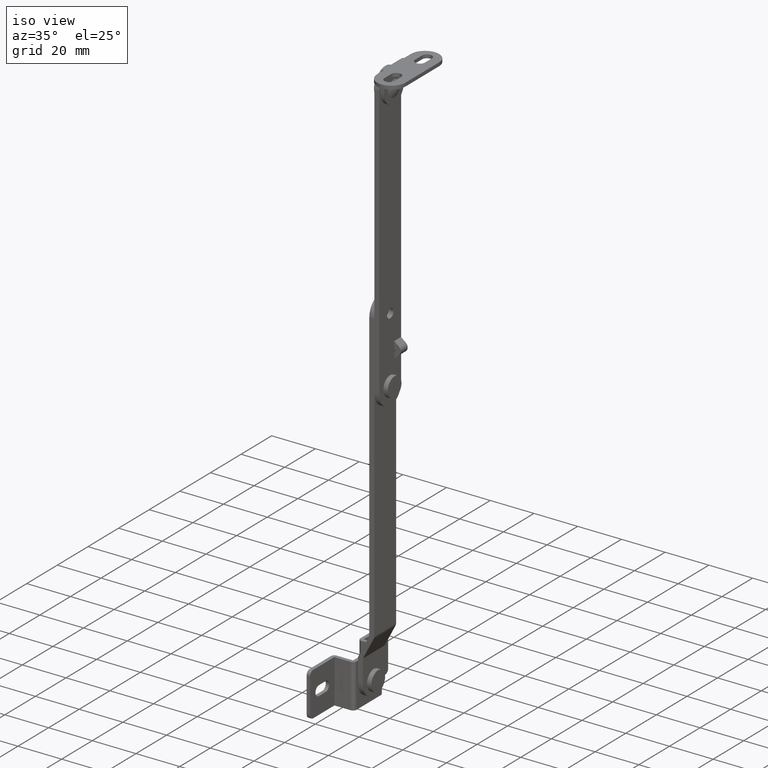
[diagram: clean part render]
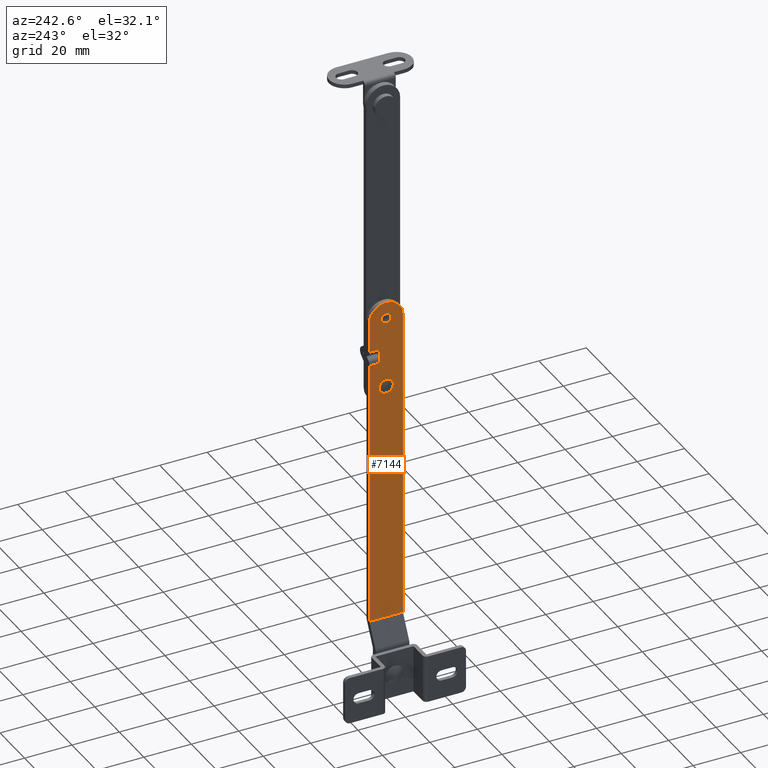
[diagram: tour spotlight — one face highlighted and labeled with its STEP entity id]
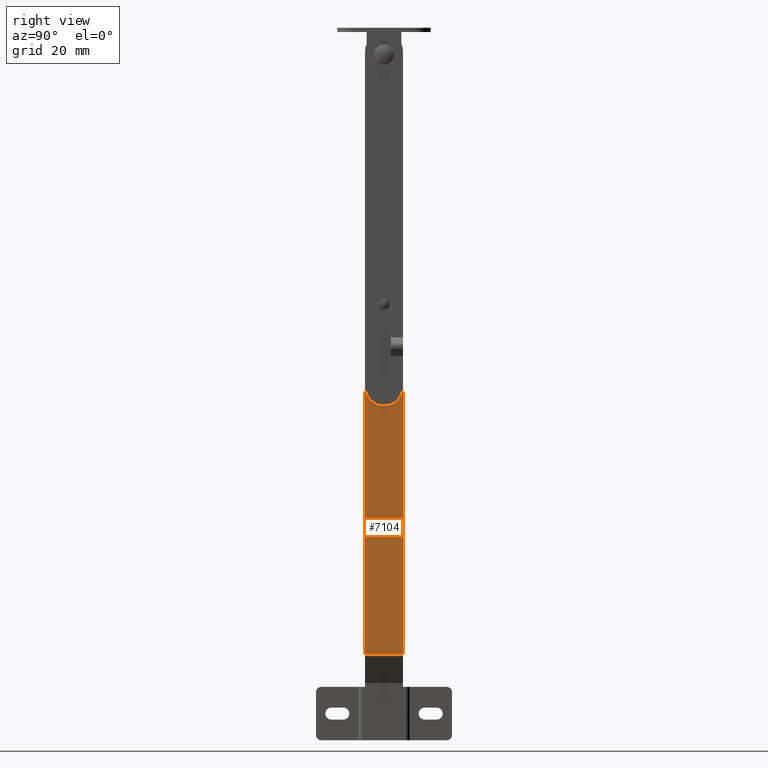
[diagram: tour spotlight — one face highlighted and labeled with its STEP entity id]
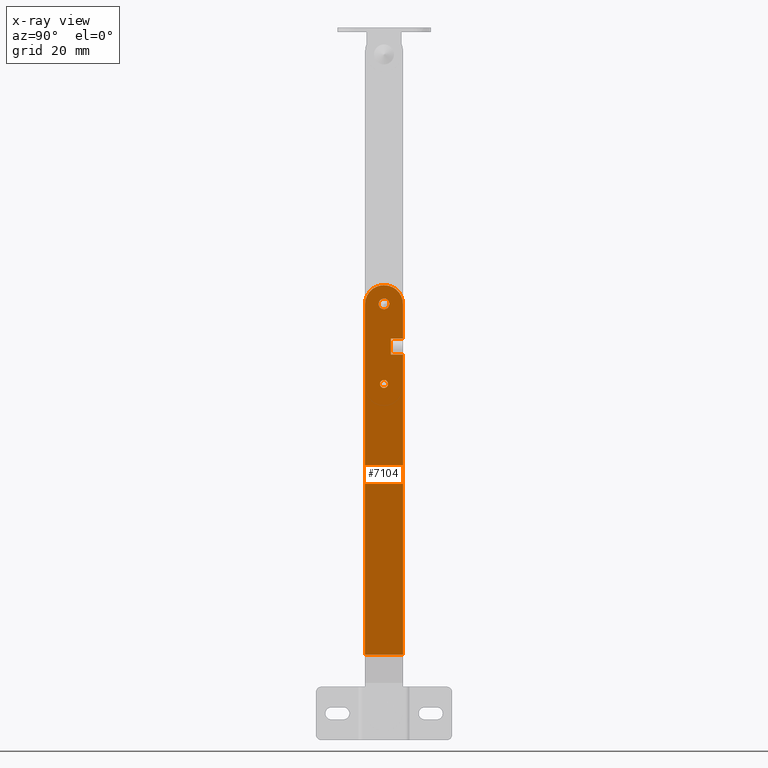
[diagram: x-ray of the same camera — body ghosted, this tour face saturated]
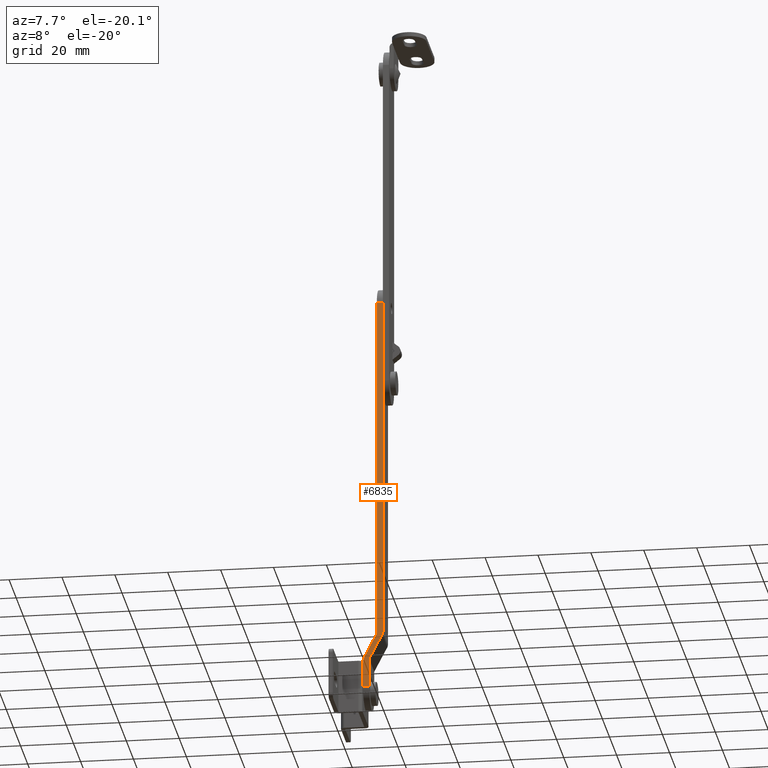
[diagram: tour spotlight — one face highlighted and labeled with its STEP entity id]
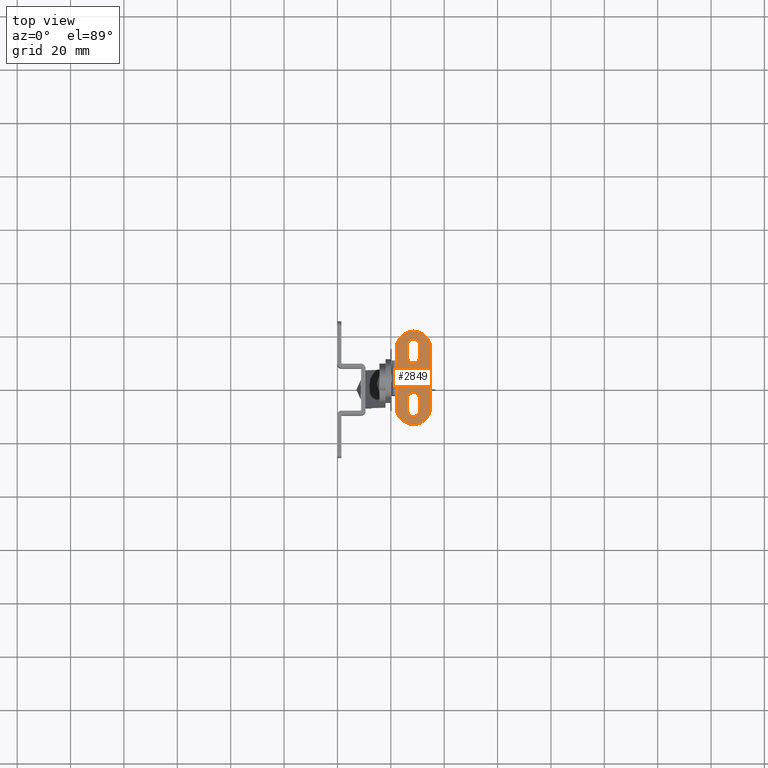
[diagram: tour spotlight — one face highlighted and labeled with its STEP entity id]
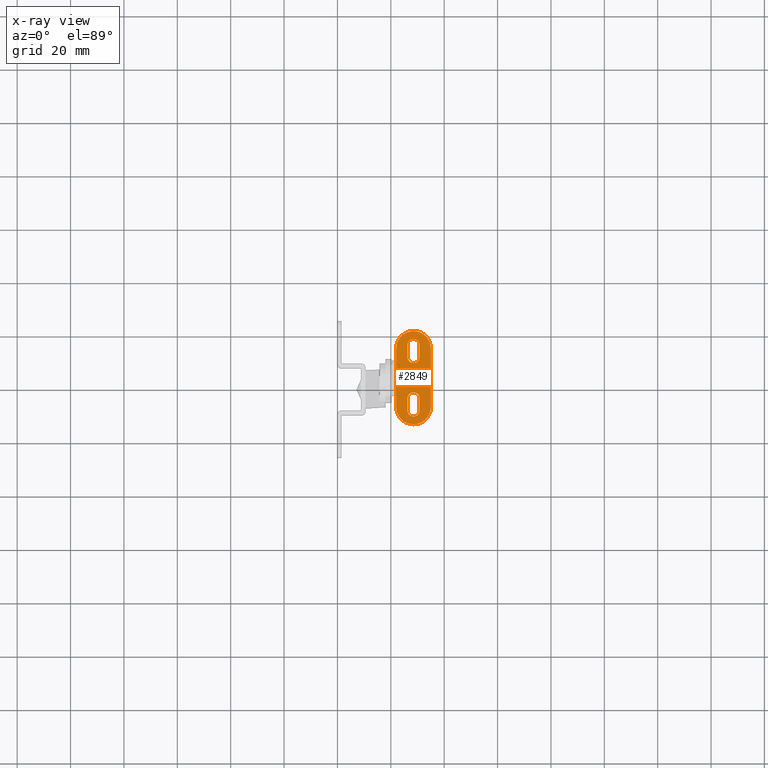
[diagram: x-ray of the same camera — body ghosted, this tour face saturated]
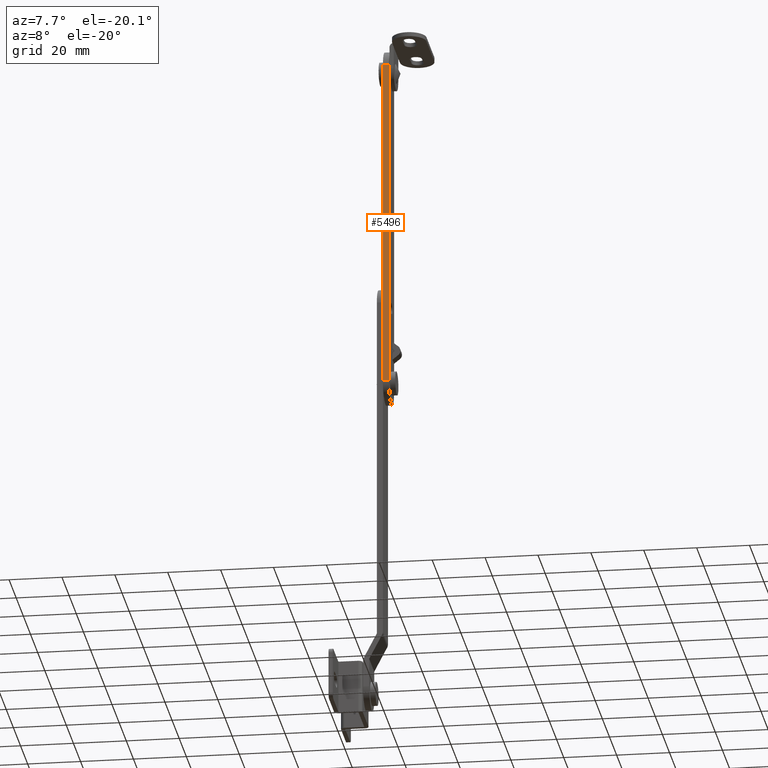
[diagram: tour spotlight — one face highlighted and labeled with its STEP entity id]
A machine part: a face-by-face anatomy tour. The part has 133 B-rep faces; the first image is the clean iso view, then the 5 largest visible faces are spotlighted one at a time (largest first), each with its STEP entity span.

Face 1 — auxiliary view, entity #7144. In plain terms, the highlighted face is a freeform B-spline surface patch.
Definition (entity closure, byte-faithful):
#5938=CARTESIAN_POINT('',(15.700005999999901,1.051364375599573,1.069875167157944));
#5939=VERTEX_POINT('',#5938);
#5945=CARTESIAN_POINT('',(15.700005999999901,1.499999999999997,-0.000000101906711));
#5946=VERTEX_POINT('',#5945);
#5947=CARTESIAN_POINT('',(15.700005999999901,1.499999999999997,-0.000000101906711));
#5948=CARTESIAN_POINT('',(15.700005999999901,1.500122899739872,0.173719303648286));
#5949=CARTESIAN_POINT('',(15.700005999999890,1.430227417031528,0.570715885011454));
#5950=CARTESIAN_POINT('',(15.700005999999910,1.210980101920558,0.913539107441710));
#5951=CARTESIAN_POINT('',(15.700005999999901,1.051364375599573,1.069875167157944));
#5952=B_SPLINE_CURVE_WITH_KNOTS('',3,(#5947,#5948,#5949,#5950,#5951),.UNSPECIFIED.,.F.,.U.,(4,1,4),(0.000000135435634,0.521198244420726,1.191308747500656),.UNSPECIFIED.);
#5953=EDGE_CURVE('',#5946,#5939,#5952,.T.);
#5955=CARTESIAN_POINT('',(15.700005999999901,0.0,-1.500000000000000));
#5956=VERTEX_POINT('',#5955);
#5957=CARTESIAN_POINT('',(15.700005999999901,0.0,-1.500000000000000));
#5958=CARTESIAN_POINT('',(15.700005999999910,0.196376599774125,-1.500198846235984));
#5959=CARTESIAN_POINT('',(15.700005999999901,0.588929838982074,-1.421784685667964));
#5960=CARTESIAN_POINT('',(15.700005999999920,1.088374425241262,-1.088400810398981));
#5961=CARTESIAN_POINT('',(15.700005999999890,1.421793857081724,-0.588893250957353));
#5962=CARTESIAN_POINT('',(15.700005999999910,1.500198181474121,-0.196384353455439));
#5963=CARTESIAN_POINT('',(15.700005999999901,1.499999999999997,-0.000000101906711));
#5964=B_SPLINE_CURVE_WITH_KNOTS('',3,(#5957,#5958,#5959,#5960,#5961,#5962,#5963),.UNSPECIFIED.,.F.,.U.,(4,1,1,1,4),(0.000000459807827,0.589113369118813,1.178215900984567,1.767323334941643,2.356430767539226),.UNSPECIFIED.);
#5965=EDGE_CURVE('',#5956,#5946,#5964,.T.);
#5967=CARTESIAN_POINT('',(15.700005999999901,-1.499999999999996,0.000000101906706));
#5968=VERTEX_POINT('',#5967);
#5969=CARTESIAN_POINT('',(15.700005999999901,-1.499999999999996,0.000000101906706));
#5970=CARTESIAN_POINT('',(15.700005999999910,-1.500225076701669,-0.196392123287928));
#5971=CARTESIAN_POINT('',(15.700005999999901,-1.441289951424104,-0.490736169374429));
#5972=CARTESIAN_POINT('',(15.700005999999910,-1.232001842553225,-0.882227498810049));
#5973=CARTESIAN_POINT('',(15.700005999999901,-0.932211260962410,-1.213320729072461));
#5974=CARTESIAN_POINT('',(15.700005999999870,-0.490912203928214,-1.449141017529791));
#5975=CARTESIAN_POINT('',(15.700005999999950,-0.147243551641718,-1.500023796581489));
#5976=CARTESIAN_POINT('',(15.700005999999901,0.0,-1.500000000000000));
#5977=B_SPLINE_CURVE_WITH_KNOTS('',3,(#5969,#5970,#5971,#5972,#5973,#5974,#5975,#5976),.UNSPECIFIED.,.F.,.U.,(4,1,1,1,1,4),(0.000000459268588,0.589113397398972,0.883685197253353,1.325465789790729,1.914625473615346,2.356430882423040),.UNSPECIFIED.);
#5978=EDGE_CURVE('',#5968,#5956,#5977,.T.);
#5980=CARTESIAN_POINT('',(15.700005999999901,-1.069875204058379,1.051364410734426));
#5981=VERTEX_POINT('',#5980);
#5982=CARTESIAN_POINT('',(15.700005999999901,-1.069875204058379,1.051364410734426));
#5983=CARTESIAN_POINT('',(15.700005999999920,-1.189042302744210,0.930248537843461));
#5984=CARTESIAN_POINT('',(15.700005999999879,-1.413534928086137,0.606487620280721));
#5985=CARTESIAN_POINT('',(15.700005999999901,-1.500344233021598,0.218503113093642));
#5986=CARTESIAN_POINT('',(15.700005999999901,-1.499999999999996,0.000000101906706));
#5987=B_SPLINE_CURVE_WITH_KNOTS('',3,(#5982,#5983,#5984,#5985,#5986),.UNSPECIFIED.,.F.,.U.,(4,1,4),(0.000000241074428,0.509760731907580,1.165122145957462),.UNSPECIFIED.);
#5988=EDGE_CURVE('',#5981,#5968,#5987,.T.);
#6023=CARTESIAN_POINT('',(15.700005999999901,0.0,1.500000000000000));
#6024=VERTEX_POINT('',#6023);
#6025=CARTESIAN_POINT('',(15.700005999999901,0.0,1.500000000000000));
#6026=CARTESIAN_POINT('',(15.700005999999890,-0.223428060207199,1.500376288470502));
#6027=CARTESIAN_POINT('',(15.700005999999959,-0.620080230317028,1.409508688843978));
#6028=CARTESIAN_POINT('',(15.700005999999870,-0.948203856341449,1.175368785320089));
#6029=CARTESIAN_POINT('',(15.700005999999901,-1.069875204058379,1.051364410734426));
#6030=B_SPLINE_CURVE_WITH_KNOTS('',3,(#6025,#6026,#6027,#6028,#6029),.UNSPECIFIED.,.F.,.U.,(4,1,4),(0.000000135444597,0.670110593011670,1.191308666597442),.UNSPECIFIED.);
#6031=EDGE_CURVE('',#6024,#5981,#6030,.T.);
#6033=CARTESIAN_POINT('',(15.700005999999901,1.051364375599573,1.069875167157944));
#6034=CARTESIAN_POINT('',(15.700005999999920,0.930251330822764,1.189035414014511));
#6035=CARTESIAN_POINT('',(15.700005999999890,0.606482672633110,1.413552001762013));
#6036=CARTESIAN_POINT('',(15.700005999999931,0.218501623237919,1.500330302461933));
#6037=CARTESIAN_POINT('',(15.700005999999901,0.0,1.500000000000000));
#6038=B_SPLINE_CURVE_WITH_KNOTS('',3,(#6033,#6034,#6035,#6036,#6037),.UNSPECIFIED.,.F.,.U.,(4,1,4),(0.000000241082925,0.509760768207852,1.165122228912353),.UNSPECIFIED.);
#6039=EDGE_CURVE('',#5939,#6024,#6038,.T.);
#6175=CARTESIAN_POINT('',(15.700005999999901,7.099999999999810,30.0));
#6176=VERTEX_POINT('',#6175);
#6182=CARTESIAN_POINT('',(15.700005999999901,0.099999999999771,37.0));
#6183=VERTEX_POINT('',#6182);
#6184=CARTESIAN_POINT('',(15.700005999999901,7.099999999999810,30.0));
#6185=CARTESIAN_POINT('',(15.700005999999890,7.100303883559221,30.687249683289629));
#6186=CARTESIAN_POINT('',(15.700005999999931,6.904436177481684,32.004259631704073));
#6187=CARTESIAN_POINT('',(15.700005999999870,6.158494406893565,33.633124725465173));
#6188=CARTESIAN_POINT('',(15.700005999999901,5.237776178589876,34.812507928734938));
#6189=CARTESIAN_POINT('',(15.700005999999901,4.161317936839008,35.764434829163832));
#6190=CARTESIAN_POINT('',(15.700005999999910,2.504664378143159,36.703281422626411));
#6191=CARTESIAN_POINT('',(15.700005999999920,1.016461110381277,37.000993557354640));
#6192=CARTESIAN_POINT('',(15.700005999999901,0.099999999999771,37.0));
#6193=B_SPLINE_CURVE_WITH_KNOTS('',3,(#6184,#6185,#6186,#6187,#6188,#6189,#6190,#6191,#6192),.UNSPECIFIED.,.F.,.U.,(4,1,1,1,1,1,4),(0.000000103436056,2.061694947789325,3.951660903987262,5.326116027955242,6.528757446212479,8.246887686309247,10.995850210342770),.UNSPECIFIED.);
#6194=EDGE_CURVE('',#6176,#6183,#6193,.T.);
#6234=CARTESIAN_POINT('',(15.700005999999901,-0.100000000000096,37.0));
#6235=VERTEX_POINT('',#6234);
#6241=CARTESIAN_POINT('',(15.700005999999901,-7.100000000000130,30.0));
#6242=VERTEX_POINT('',#6241);
#6243=CARTESIAN_POINT('',(15.700005999999901,-0.100000000000096,37.0));
#6244=CARTESIAN_POINT('',(15.700005999999920,-0.787243415503731,37.000265346069497));
#6245=CARTESIAN_POINT('',(15.700005999999879,-1.989699681110912,36.821431970349472));
#6246=CARTESIAN_POINT('',(15.700005999999931,-3.790451056378825,36.049712206875398));
#6247=CARTESIAN_POINT('',(15.700005999999879,-5.148950888100769,34.962647907980717));
#6248=CARTESIAN_POINT('',(15.700005999999910,-6.142752178214779,33.621869600809639));
#6249=CARTESIAN_POINT('',(15.700005999999910,-6.881009957173792,32.061333463537267));
#6250=CARTESIAN_POINT('',(15.700005999999901,-7.100627264238812,30.801850054614050));
#6251=CARTESIAN_POINT('',(15.700005999999901,-7.100000000000130,30.0));
#6252=B_SPLINE_CURVE_WITH_KNOTS('',3,(#6243,#6244,#6245,#6246,#6247,#6248,#6249,#6250,#6251),.UNSPECIFIED.,.F.,.U.,(4,1,1,1,1,1,4),(0.000000103441824,2.061694947793109,3.608039198012665,5.841537144288274,7.215993843949471,8.590522354220333,10.995850210342800),.UNSPECIFIED.);
#6253=EDGE_CURVE('',#6235,#6242,#6252,.T.);
#6375=CARTESIAN_POINT('',(15.699988000014550,2.599999999999935,11.220224619865300));
#6376=VERTEX_POINT('',#6375);
#6377=CARTESIAN_POINT('',(15.699996999999900,2.599999999999935,10.999999999972101));
#6378=VERTEX_POINT('',#6377);
#6379=CARTESIAN_POINT('',(15.699988000014550,2.599999999999935,11.220224619865300));
#6380=CARTESIAN_POINT('',(15.699996999999900,2.599999999999935,10.999999999972101));
#6381=QUASI_UNIFORM_CURVE('',1,(#6379,#6380),.UNSPECIFIED.,.F.,.U.);
#6382=EDGE_CURVE('',#6376,#6378,#6381,.T.);
#6391=CARTESIAN_POINT('',(15.699987999999900,7.099999999999770,10.999999999972101));
#6392=VERTEX_POINT('',#6391);
#6398=CARTESIAN_POINT('',(15.699987999999900,7.099999999999770,10.999999999972101));
#6399=CARTESIAN_POINT('',(15.699996999999900,2.599999999999935,10.999999999972101));
#6400=QUASI_UNIFORM_CURVE('',1,(#6398,#6399),.UNSPECIFIED.,.F.,.U.);
#6401=EDGE_CURVE('',#6392,#6378,#6400,.T.);
#6422=CARTESIAN_POINT('',(15.700005999999901,2.599999999999935,11.229324048898141));
#6423=VERTEX_POINT('',#6422);
#6450=CARTESIAN_POINT('',(15.699988000014550,2.599999999999935,11.220224619865300));
#6451=CARTESIAN_POINT('',(15.700005999999901,2.599999999999935,11.229324048898141));
#6452=QUASI_UNIFORM_CURVE('',1,(#6450,#6451),.UNSPECIFIED.,.F.,.U.);
#6453=EDGE_CURVE('',#6376,#6423,#6452,.T.);
#6528=CARTESIAN_POINT('',(15.700005999999901,2.599999999999940,16.770675949953350));
#6529=VERTEX_POINT('',#6528);
#6530=CARTESIAN_POINT('',(15.699987999999900,2.599999999999940,16.779775380078000));
#6531=VERTEX_POINT('',#6530);
#6532=CARTESIAN_POINT('',(15.700005999999901,2.599999999999940,16.770675949953350));
#6533=CARTESIAN_POINT('',(15.699987999999900,2.599999999999940,16.779775380078000));
#6534=QUASI_UNIFORM_CURVE('',1,(#6532,#6533),.UNSPECIFIED.,.F.,.U.);
#6535=EDGE_CURVE('',#6529,#6531,#6534,.T.);
#6570=CARTESIAN_POINT('',(15.699996999999900,2.599999999999940,16.999999999971699));
#6571=VERTEX_POINT('',#6570);
#6572=CARTESIAN_POINT('',(15.699996999999900,2.599999999999940,16.999999999971699));
#6573=CARTESIAN_POINT('',(15.699987999999900,2.599999999999940,16.779775380078000));
#6574=QUASI_UNIFORM_CURVE('',1,(#6572,#6573),.UNSPECIFIED.,.F.,.U.);
#6575=EDGE_CURVE('',#6571,#6531,#6574,.T.);
#6577=CARTESIAN_POINT('',(15.699987999999900,7.099999999999779,16.999999999971699));
#6578=VERTEX_POINT('',#6577);
#6579=CARTESIAN_POINT('',(15.699996999999900,2.599999999999940,16.999999999971699));
#6580=CARTESIAN_POINT('',(15.699987999999900,7.099999999999779,16.999999999971699));
#6581=QUASI_UNIFORM_CURVE('',1,(#6579,#6580),.UNSPECIFIED.,.F.,.U.);
#6582=EDGE_CURVE('',#6571,#6578,#6581,.T.);
#6639=CARTESIAN_POINT('',(15.700005999999901,-1.104993E-013,31.999986499873440));
#6640=VERTEX_POINT('',#6639);
#6641=CARTESIAN_POINT('',(15.700005999999901,1.999986499859042,29.999992440103970));
#6642=VERTEX_POINT('',#6641);
#6643=CARTESIAN_POINT('',(15.700005999999901,-1.104993E-013,31.999986499873440));
#6644=CARTESIAN_POINT('',(15.700005999999901,0.311004049127547,32.000554016563207));
#6645=CARTESIAN_POINT('',(15.700005999999890,0.817693490684918,31.879194944000609));
#6646=CARTESIAN_POINT('',(15.700005999999920,1.399144428384320,31.469555071839640));
#6647=CARTESIAN_POINT('',(15.700005999999931,1.857344538672020,30.882810705553741));
#6648=CARTESIAN_POINT('',(15.700005999999901,2.000757373706217,30.343797223003641));
#6649=CARTESIAN_POINT('',(15.700005999999901,1.999986499859042,29.999992440103970));
#6650=B_SPLINE_CURVE_WITH_KNOTS('',3,(#6643,#6644,#6645,#6646,#6647,#6648,#6649),.UNSPECIFIED.,.F.,.U.,(4,1,1,1,4),(0.000000627928302,0.932681936950446,1.521832675477801,2.110782849266091,3.141654543332307),.UNSPECIFIED.);
#6651=EDGE_CURVE('',#6640,#6642,#6650,.T.);
#6653=CARTESIAN_POINT('',(15.700005999999901,-1.104993E-013,28.000013500126560));
#6654=VERTEX_POINT('',#6653);
#6655=CARTESIAN_POINT('',(15.700005999999901,1.999986499859042,29.999992440103970));
#6656=CARTESIAN_POINT('',(15.700005999999890,2.000513208145683,29.689025904341719));
#6657=CARTESIAN_POINT('',(15.700005999999940,1.871502387616775,29.149572989678159));
#6658=CARTESIAN_POINT('',(15.700005999999879,1.426249773000000,28.549477397777249));
#6659=CARTESIAN_POINT('',(15.700005999999901,0.817703691052499,28.120772215589842));
#6660=CARTESIAN_POINT('',(15.700005999999931,0.310998881330935,27.999471182854741));
#6661=CARTESIAN_POINT('',(15.700005999999901,-1.104993E-013,28.000013500126560));
#6662=B_SPLINE_CURVE_WITH_KNOTS('',3,(#6655,#6656,#6657,#6658,#6659,#6660,#6661),.UNSPECIFIED.,.F.,.U.,(4,1,1,1,4),(0.000000638224991,0.932679417473202,1.619816557682315,2.208963251869816,3.141646021354817),.UNSPECIFIED.);
#6663=EDGE_CURVE('',#6642,#6654,#6662,.T.);
#6665=CARTESIAN_POINT('',(15.700005999999901,-1.999986499859263,30.000007559896019));
#6666=VERTEX_POINT('',#6665);
#6667=CARTESIAN_POINT('',(15.700005999999901,-1.104993E-013,28.000013500126560));
#6668=CARTESIAN_POINT('',(15.700005999999890,-0.360275609754534,27.998961343049832));
#6669=CARTESIAN_POINT('',(15.700005999999931,-0.850035489973806,28.136145614448839));
#6670=CARTESIAN_POINT('',(15.700005999999901,-1.417827204026142,28.557541991597880));
#6671=CARTESIAN_POINT('',(15.700005999999901,-1.852956323160285,29.100781792100850));
#6672=CARTESIAN_POINT('',(15.700005999999901,-2.000822813940395,29.656209374842419));
#6673=CARTESIAN_POINT('',(15.700005999999901,-1.999986499859263,30.000007559896019));
#6674=B_SPLINE_CURVE_WITH_KNOTS('',3,(#6667,#6668,#6669,#6670,#6671,#6672,#6673),.UNSPECIFIED.,.F.,.U.,(4,1,1,1,4),(0.000000627928806,1.079982158424290,1.472680493894485,2.110782849266362,3.141654543332297),.UNSPECIFIED.);
#6675=EDGE_CURVE('',#6654,#6666,#6674,.T.);
#6677=CARTESIAN_POINT('',(15.700005999999901,-1.999986499859263,30.000007559896019));
#6678=CARTESIAN_POINT('',(15.700005999999901,-2.000555881411592,30.311024373463390));
#6679=CARTESIAN_POINT('',(15.700005999999940,-1.890929681635134,30.768610507004780));
#6680=CARTESIAN_POINT('',(15.700005999999840,-1.531714833233878,31.320581321647548));
#6681=CARTESIAN_POINT('',(15.700005999999931,-1.188590946024654,31.631573656429978));
#6682=CARTESIAN_POINT('',(15.700005999999931,-0.670614727185511,31.916681122127191));
#6683=CARTESIAN_POINT('',(15.700005999999860,-0.278245211351140,32.000370125730072));
#6684=CARTESIAN_POINT('',(15.700005999999901,-1.104993E-013,31.999986499873440));
#6685=B_SPLINE_CURVE_WITH_KNOTS('',3,(#6677,#6678,#6679,#6680,#6681,#6682,#6683,#6684),.UNSPECIFIED.,.F.,.U.,(4,1,1,1,1,4),(0.000000638225369,0.932679417473527,1.374514959334685,1.963486114886091,2.307145353052646,3.141646021354821),.UNSPECIFIED.);
#6686=EDGE_CURVE('',#6666,#6640,#6685,.T.);
#6804=CARTESIAN_POINT('',(15.700005999999901,-7.100000000000120,-102.000000000032400));
#6805=VERTEX_POINT('',#6804);
#6806=CARTESIAN_POINT('',(15.700005999999901,-7.100000000000130,30.0));
#6807=CARTESIAN_POINT('',(15.700005999999901,-7.100000000000120,-102.000000000032400));
#6808=QUASI_UNIFORM_CURVE('',1,(#6806,#6807),.UNSPECIFIED.,.F.,.U.);
#6809=EDGE_CURVE('',#6242,#6805,#6808,.T.);
#6847=CARTESIAN_POINT('',(15.700005999999901,-0.100000000000096,37.0));
#6848=CARTESIAN_POINT('',(15.700005999999901,0.099999999999771,37.0));
#6849=QUASI_UNIFORM_CURVE('',1,(#6847,#6848),.UNSPECIFIED.,.F.,.U.);
#6850=EDGE_CURVE('',#6235,#6183,#6849,.T.);
#7011=CARTESIAN_POINT('',(15.700005999999901,7.099999999999759,-102.000000000032400));
#7012=VERTEX_POINT('',#7011);
#7020=CARTESIAN_POINT('',(15.700005999999901,-7.100000000000120,-102.000000000032400));
#7021=CARTESIAN_POINT('',(15.700005999999901,7.099999999999759,-102.000000000032400));
#7022=QUASI_UNIFORM_CURVE('',1,(#7020,#7021),.UNSPECIFIED.,.F.,.U.);
#7023=EDGE_CURVE('',#6805,#7012,#7022,.T.);
#7036=CARTESIAN_POINT('',(15.699987999999900,7.099999999999770,10.999999999972101));
#7037=CARTESIAN_POINT('',(15.700005999999901,7.099999999999759,-102.000000000032400));
#7038=QUASI_UNIFORM_CURVE('',1,(#7036,#7037),.UNSPECIFIED.,.F.,.U.);
#7039=EDGE_CURVE('',#6392,#7012,#7038,.T.);
#7047=CARTESIAN_POINT('',(15.700005999999901,7.099999999999810,30.0));
#7048=CARTESIAN_POINT('',(15.699987999999900,7.099999999999779,16.999999999971699));
#7049=QUASI_UNIFORM_CURVE('',1,(#7047,#7048),.UNSPECIFIED.,.F.,.U.);
#7050=EDGE_CURVE('',#6176,#6578,#7049,.T.);
#7105=CARTESIAN_POINT('',(15.700005999999901,-7.809289972477773,-108.943049730625110));
#7106=CARTESIAN_POINT('',(15.700005999999901,-7.809289972477773,43.943053458863183));
#7107=CARTESIAN_POINT('',(15.700005999999901,7.809290353351130,-108.943049730625110));
#7108=CARTESIAN_POINT('',(15.700005999999901,7.809290353351130,43.943053458863183));
#7109=B_SPLINE_SURFACE_WITH_KNOTS('',1,1,((#7105,#7107),(#7106,#7108)),.UNSPECIFIED.,.F.,.F.,.U.,(2,2),(2,2),(0.0,152.886103189488300),(0.0,15.618580325828900),.UNSPECIFIED.);
#7110=ORIENTED_EDGE('',*,*,#6850,.T.);
#7111=ORIENTED_EDGE('',*,*,#6194,.F.);
#7112=ORIENTED_EDGE('',*,*,#7050,.T.);
#7113=ORIENTED_EDGE('',*,*,#6582,.F.);
#7114=ORIENTED_EDGE('',*,*,#6575,.T.);
#7115=ORIENTED_EDGE('',*,*,#6535,.F.);
#7116=CARTESIAN_POINT('',(15.700005999999901,2.599999999999935,11.229324048898141));
#7117=CARTESIAN_POINT('',(15.700005999999901,2.599999999999940,16.770675949953350));
#7118=QUASI_UNIFORM_CURVE('',1,(#7116,#7117),.UNSPECIFIED.,.F.,.U.);
#7119=EDGE_CURVE('',#6423,#6529,#7118,.T.);
#7120=ORIENTED_EDGE('',*,*,#7119,.F.);
#7121=ORIENTED_EDGE('',*,*,#6453,.F.);
#7122=ORIENTED_EDGE('',*,*,#6382,.T.);
#7123=ORIENTED_EDGE('',*,*,#6401,.F.);
#7124=ORIENTED_EDGE('',*,*,#7039,.T.);
#7125=ORIENTED_EDGE('',*,*,#7023,.F.);
#7126=ORIENTED_EDGE('',*,*,#6809,.F.);
#7127=ORIENTED_EDGE('',*,*,#6253,.F.);
#7128=EDGE_LOOP('',(#7110,#7111,#7112,#7113,#7114,#7115,#7120,#7121,#7122,#7123,#7124,#7125,#7126,#7127));
#7129=FACE_OUTER_BOUND('',#7128,.T.);
#7130=ORIENTED_EDGE('',*,*,#5978,.T.);
#7131=ORIENTED_EDGE('',*,*,#5965,.T.);
#7132=ORIENTED_EDGE('',*,*,#5953,.T.);
#7133=ORIENTED_EDGE('',*,*,#6039,.T.);
#7134=ORIENTED_EDGE('',*,*,#6031,.T.);
#7135=ORIENTED_EDGE('',*,*,#5988,.T.);
#7136=EDGE_LOOP('',(#7130,#7131,#7132,#7133,#7134,#7135));
#7137=FACE_BOUND('',#7136,.T.);
#7138=ORIENTED_EDGE('',*,*,#6651,.F.);
#7139=ORIENTED_EDGE('',*,*,#6686,.F.);
#7140=ORIENTED_EDGE('',*,*,#6675,.F.);
#7141=ORIENTED_EDGE('',*,*,#6663,.F.);
#7142=EDGE_LOOP('',(#7138,#7139,#7140,#7141));
#7143=FACE_BOUND('',#7142,.T.);
#7144=ADVANCED_FACE('',(#7129,#7137,#7143),#7109,.T.);

Face 2 — right view, entity #7104. An x-ray twin of the same camera follows (body ghosted, this face saturated) — the face is partly hidden behind the body. In plain terms, the highlighted face is a freeform B-spline surface patch.
Definition (entity closure, byte-faithful):
#5891=CARTESIAN_POINT('',(18.000005999999850,-1.499999999999997,-0.000000101906711));
#5892=VERTEX_POINT('',#5891);
#5893=CARTESIAN_POINT('',(18.000006000000660,-1.069875161060262,1.051364381804607));
#5894=VERTEX_POINT('',#5893);
#5895=CARTESIAN_POINT('',(18.000005999999850,-1.499999999999997,-0.000000101906711));
#5896=CARTESIAN_POINT('',(18.000006000000010,-1.500103130820053,0.169910022762481));
#5897=CARTESIAN_POINT('',(18.000006000000241,-1.433303266753001,0.558185943725692));
#5898=CARTESIAN_POINT('',(18.000006000000560,-1.223265452978632,0.895753491769580));
#5899=CARTESIAN_POINT('',(18.000006000000660,-1.069875161060262,1.051364381804607));
#5900=B_SPLINE_CURVE_WITH_KNOTS('',3,(#5895,#5896,#5897,#5898,#5899),.UNSPECIFIED.,.F.,.U.,(4,1,4),(0.000000241074635,0.509760816615268,1.165122339551251),.UNSPECIFIED.);
#5901=EDGE_CURVE('',#5892,#5894,#5900,.T.);
#5903=CARTESIAN_POINT('',(18.000005999999850,0.0,-1.500000000000000));
#5904=VERTEX_POINT('',#5903);
#5905=CARTESIAN_POINT('',(18.000005999999850,0.0,-1.500000000000000));
#5906=CARTESIAN_POINT('',(18.000005999999861,-0.196376588844617,-1.500198869482367));
#5907=CARTESIAN_POINT('',(18.000005999999861,-0.588929825499899,-1.421784717390424));
#5908=CARTESIAN_POINT('',(18.000005999999850,-1.088374743961445,-1.088400118192788));
#5909=CARTESIAN_POINT('',(18.000005999999850,-1.421792717255046,-0.588895725307404));
#5910=CARTESIAN_POINT('',(18.000005999999861,-1.500198714386067,-0.196383197151813));
#5911=CARTESIAN_POINT('',(18.000005999999850,-1.499999999999997,-0.000000101906711));
#5912=B_SPLINE_CURVE_WITH_KNOTS('',3,(#5905,#5906,#5907,#5908,#5909,#5910,#5911),.UNSPECIFIED.,.F.,.U.,(4,1,1,1,4),(0.000000459807827,0.589113369118813,1.178215900984567,1.767323334941643,2.356430767539226),.UNSPECIFIED.);
#5913=EDGE_CURVE('',#5904,#5892,#5912,.T.);
#5915=CARTESIAN_POINT('',(18.000005999999850,1.499999999999996,0.000000101906706));
#5916=VERTEX_POINT('',#5915);
#5917=CARTESIAN_POINT('',(18.000005999999850,1.499999999999996,0.000000101906706));
#5918=CARTESIAN_POINT('',(18.000005999999861,1.500227444283490,-0.196394948544765));
#5919=CARTESIAN_POINT('',(18.000005999999850,1.441280870387536,-0.490726147554906));
#5920=CARTESIAN_POINT('',(18.000005999999861,1.232015401121952,-0.882242641139707));
#5921=CARTESIAN_POINT('',(18.000005999999861,0.932195025719677,-1.213302192652900));
#5922=CARTESIAN_POINT('',(18.000005999999821,0.490922037095062,-1.449151624591697));
#5923=CARTESIAN_POINT('',(18.000005999999910,0.147241673740855,-1.500021779058160));
#5924=CARTESIAN_POINT('',(18.000005999999850,0.0,-1.500000000000000));
#5925=B_SPLINE_CURVE_WITH_KNOTS('',3,(#5917,#5918,#5919,#5920,#5921,#5922,#5923,#5924),.UNSPECIFIED.,.F.,.U.,(4,1,1,1,1,4),(0.000000459268588,0.589113397398972,0.883685197253353,1.325465789790729,1.914625473615346,2.356430882423040),.UNSPECIFIED.);
#5926=EDGE_CURVE('',#5916,#5904,#5925,.T.);
#5928=CARTESIAN_POINT('',(18.000005999997811,1.051364416937645,1.069875197962481));
#5929=VERTEX_POINT('',#5928);
#5930=CARTESIAN_POINT('',(18.000005999997811,1.051364416937645,1.069875197962481));
#5931=CARTESIAN_POINT('',(18.000005999998020,1.175367762360585,0.948206943918477));
#5932=CARTESIAN_POINT('',(18.000005999998709,1.409507436580304,0.620077975789718));
#5933=CARTESIAN_POINT('',(18.000005999999409,1.500376741575686,0.223430054945885));
#5934=CARTESIAN_POINT('',(18.000005999999850,1.499999999999996,0.000000101906706));
#5935=B_SPLINE_CURVE_WITH_KNOTS('',3,(#5930,#5931,#5932,#5933,#5934),.UNSPECIFIED.,.F.,.U.,(4,1,4),(0.000000135435517,0.521198160620940,1.191308555959615),.UNSPECIFIED.);
#5936=EDGE_CURVE('',#5929,#5916,#5935,.T.);
#6012=CARTESIAN_POINT('',(18.000005999999850,0.0,1.500000000000000));
#6013=VERTEX_POINT('',#6012);
#6014=CARTESIAN_POINT('',(18.000006000000660,-1.069875161060262,1.051364381804607));
#6015=CARTESIAN_POINT('',(18.000006000000582,-0.948192849623761,1.175362561215555));
#6016=CARTESIAN_POINT('',(18.000006000000301,-0.620093618435196,1.409519992278975));
#6017=CARTESIAN_POINT('',(18.000006000000049,-0.223423986242300,1.500370660498040));
#6018=CARTESIAN_POINT('',(18.000005999999850,0.0,1.500000000000000));
#6019=B_SPLINE_CURVE_WITH_KNOTS('',3,(#6014,#6015,#6016,#6017,#6018),.UNSPECIFIED.,.F.,.U.,(4,1,4),(0.000000135444576,0.521198196014019,1.191308636860280),.UNSPECIFIED.);
#6020=EDGE_CURVE('',#5894,#6013,#6019,.T.);
#6042=CARTESIAN_POINT('',(18.000005999999850,0.0,1.500000000000000));
#6043=CARTESIAN_POINT('',(18.000005999999431,0.218494379630198,1.500327565587853));
#6044=CARTESIAN_POINT('',(18.000005999998681,0.606510925274386,1.413560937305527));
#6045=CARTESIAN_POINT('',(18.000005999998049,0.930234915176164,1.189030498390524));
#6046=CARTESIAN_POINT('',(18.000005999997811,1.051364416937645,1.069875197962481));
#6047=B_SPLINE_CURVE_WITH_KNOTS('',3,(#6042,#6043,#6044,#6045,#6046),.UNSPECIFIED.,.F.,.U.,(4,1,4),(0.000000241082947,0.655361717355474,1.165122256593811),.UNSPECIFIED.);
#6048=EDGE_CURVE('',#6013,#5929,#6047,.T.);
#6159=CARTESIAN_POINT('',(18.000005999999900,0.099999999999771,37.0));
#6160=VERTEX_POINT('',#6159);
#6161=CARTESIAN_POINT('',(18.000005999999900,7.099999999999810,30.0));
#6162=VERTEX_POINT('',#6161);
#6163=CARTESIAN_POINT('',(18.000005999999900,0.099999999999771,37.0));
#6164=CARTESIAN_POINT('',(18.000005999999910,0.558129491409963,37.000049164539298));
#6165=CARTESIAN_POINT('',(18.000005999999889,1.531701648861112,36.904121370959452));
#6166=CARTESIAN_POINT('',(18.000005999999932,3.014766653559331,36.434364484796909));
#6167=CARTESIAN_POINT('',(18.000005999999900,4.598752977927457,35.485312077086952));
#6168=CARTESIAN_POINT('',(18.000005999999921,5.901396138992642,34.083040037347153));
#6169=CARTESIAN_POINT('',(18.000005999999878,6.861086483578201,32.175853780329739));
#6170=CARTESIAN_POINT('',(18.000005999999910,7.100608752265634,30.801839379138190));
#6171=CARTESIAN_POINT('',(18.000005999999900,7.099999999999810,30.0));
#6172=B_SPLINE_CURVE_WITH_KNOTS('',3,(#6163,#6164,#6165,#6166,#6167,#6168,#6169,#6170,#6171),.UNSPECIFIED.,.F.,.U.,(4,1,1,1,1,1,4),(0.000000103437594,1.374433178977116,2.920780861271868,4.638890327554297,6.872372686349995,8.590522354220244,10.995850210342770),.UNSPECIFIED.);
#6173=EDGE_CURVE('',#6160,#6162,#6172,.T.);
#6218=CARTESIAN_POINT('',(18.000005999999900,-7.100000000000130,30.0));
#6219=VERTEX_POINT('',#6218);
#6220=CARTESIAN_POINT('',(18.000005999999900,-0.100000000000096,37.0));
#6221=VERTEX_POINT('',#6220);
#6222=CARTESIAN_POINT('',(18.000005999999900,-7.100000000000130,30.0));
#6223=CARTESIAN_POINT('',(18.000005999999932,-7.100265206969085,30.687243634179062));
#6224=CARTESIAN_POINT('',(18.000005999999839,-6.921432701573106,31.889700397902850));
#6225=CARTESIAN_POINT('',(18.000005999999960,-6.149706173630148,33.690442842200028));
#6226=CARTESIAN_POINT('',(18.000005999999850,-5.062670607009047,35.048981568222104));
#6227=CARTESIAN_POINT('',(18.000005999999910,-3.814286363045309,35.974110814356528));
#6228=CARTESIAN_POINT('',(18.000005999999900,-2.275656229925599,36.749082999027593));
#6229=CARTESIAN_POINT('',(18.000005999999921,-1.016485849101378,37.000986558989410));
#6230=CARTESIAN_POINT('',(18.000005999999900,-0.100000000000096,37.0));
#6231=B_SPLINE_CURVE_WITH_KNOTS('',3,(#6222,#6223,#6224,#6225,#6226,#6227,#6228,#6229,#6230),.UNSPECIFIED.,.F.,.U.,(4,1,1,1,1,1,4),(0.000000103437234,2.061694947790036,3.608039198010765,5.841537144287647,7.215993843949216,8.246887686309258,10.995850210342800),.UNSPECIFIED.);
#6232=EDGE_CURVE('',#6219,#6221,#6231,.T.);
#6268=CARTESIAN_POINT('',(18.000000627530550,2.599999999999920,16.999990730335298));
#6269=VERTEX_POINT('',#6268);
#6270=CARTESIAN_POINT('',(18.000002195611749,2.599999999999915,11.000010420705159));
#6271=VERTEX_POINT('',#6270);
#6272=CARTESIAN_POINT('',(18.000000627530550,2.599999999999920,16.999990730335298));
#6273=CARTESIAN_POINT('',(18.000002195611749,2.599999999999915,11.000010420705159));
#6274=QUASI_UNIFORM_CURVE('',1,(#6272,#6273),.UNSPECIFIED.,.F.,.U.);
#6275=EDGE_CURVE('',#6269,#6271,#6274,.T.);
#6354=CARTESIAN_POINT('',(17.999997000007362,7.099999999999885,10.999999999972101));
#6355=VERTEX_POINT('',#6354);
#6356=CARTESIAN_POINT('',(18.000002195611749,2.599999999999915,11.000010420705159));
#6357=CARTESIAN_POINT('',(17.999997000007362,7.099999999999885,10.999999999972101));
#6358=QUASI_UNIFORM_CURVE('',1,(#6356,#6357),.UNSPECIFIED.,.F.,.U.);
#6359=EDGE_CURVE('',#6271,#6355,#6358,.T.);
#6600=CARTESIAN_POINT('',(17.999997000004878,7.099999999999795,16.999999999971699));
#6601=VERTEX_POINT('',#6600);
#6607=CARTESIAN_POINT('',(17.999997000004878,7.099999999999795,16.999999999971699));
#6608=CARTESIAN_POINT('',(18.000000627530550,2.599999999999920,16.999990730335298));
#6609=QUASI_UNIFORM_CURVE('',1,(#6607,#6608),.UNSPECIFIED.,.F.,.U.);
#6610=EDGE_CURVE('',#6601,#6269,#6609,.T.);
#6715=CARTESIAN_POINT('',(18.000005999999900,-1.104993E-013,31.999999999999719));
#6716=VERTEX_POINT('',#6715);
#6717=CARTESIAN_POINT('',(18.000005999999900,-1.999999999985538,29.999992440052939));
#6718=VERTEX_POINT('',#6717);
#6719=CARTESIAN_POINT('',(18.000005999999900,-1.104993E-013,31.999999999999719));
#6720=CARTESIAN_POINT('',(18.000005999999921,-0.163613419568087,32.000021993566953));
#6721=CARTESIAN_POINT('',(18.000005999999900,-0.556334424572660,31.951613046783439));
#6722=CARTESIAN_POINT('',(18.000005999999939,-1.163683284764232,31.682682604088651));
#6723=CARTESIAN_POINT('',(18.000005999999839,-1.623601722105755,31.222618518702681));
#6724=CARTESIAN_POINT('',(18.000005999999999,-1.926733003041354,30.637990518228701));
#6725=CARTESIAN_POINT('',(18.000005999999811,-2.000219181407495,30.245463807323929));
#6726=CARTESIAN_POINT('',(18.000005999999900,-1.999999999985538,29.999992440052939));
#6727=B_SPLINE_CURVE_WITH_KNOTS('',3,(#6719,#6720,#6721,#6722,#6723,#6724,#6725,#6726),.UNSPECIFIED.,.F.,.U.,(4,1,1,1,1,4),(0.000000627934735,0.490860546175845,1.178174674354041,1.963504714423057,2.405346803948755,3.141675749841974),.UNSPECIFIED.);
#6728=EDGE_CURVE('',#6716,#6718,#6727,.T.);
#6730=CARTESIAN_POINT('',(18.000005999999900,-1.104993E-013,28.000000000000281));
#6731=VERTEX_POINT('',#6730);
#6732=CARTESIAN_POINT('',(18.000005999999900,-1.999999999985538,29.999992440052939));
#6733=CARTESIAN_POINT('',(18.000005999999900,-2.000022615197152,29.836379592344748));
#6734=CARTESIAN_POINT('',(18.000005999999932,-1.951615075482396,29.443658966006790));
#6735=CARTESIAN_POINT('',(18.000005999999878,-1.682687942467849,28.836311885970709));
#6736=CARTESIAN_POINT('',(18.000005999999889,-1.222624521343937,28.376393076210420));
#6737=CARTESIAN_POINT('',(18.000005999999971,-0.637995941640505,28.073267157258979));
#6738=CARTESIAN_POINT('',(18.000005999999878,-0.245470815138002,27.999781275515151));
#6739=CARTESIAN_POINT('',(18.000005999999900,-1.104993E-013,28.000000000000281));
#6740=B_SPLINE_CURVE_WITH_KNOTS('',3,(#6732,#6733,#6734,#6735,#6736,#6737,#6738,#6739),.UNSPECIFIED.,.F.,.U.,(4,1,1,1,1,4),(0.000000638229603,0.490859221787257,1.178171486563162,1.963499368630637,2.405340284376993,3.141667227806961),.UNSPECIFIED.);
#6741=EDGE_CURVE('',#6718,#6731,#6740,.T.);
#6743=CARTESIAN_POINT('',(18.000005999999900,1.999999999985316,30.000007559947051));
#6744=VERTEX_POINT('',#6743);
#6745=CARTESIAN_POINT('',(18.000005999999900,-1.104993E-013,28.000000000000281));
#6746=CARTESIAN_POINT('',(18.000005999999932,0.310993223632369,27.999447021546320));
#6747=CARTESIAN_POINT('',(18.000005999999839,0.817738320728569,28.120750081616212));
#6748=CARTESIAN_POINT('',(18.000005999999999,1.358572563433599,28.501896577493039));
#6749=CARTESIAN_POINT('',(18.000005999999850,1.697750883268679,28.904984940712978));
#6750=CARTESIAN_POINT('',(18.000005999999949,1.936759768030051,29.394646559662199));
#6751=CARTESIAN_POINT('',(18.000005999999878,2.000106305458172,29.787283809459471));
#6752=CARTESIAN_POINT('',(18.000005999999900,1.999999999985316,30.000007559947051));
#6753=B_SPLINE_CURVE_WITH_KNOTS('',3,(#6745,#6746,#6747,#6748,#6749,#6750,#6751,#6752),.UNSPECIFIED.,.F.,.U.,(4,1,1,1,1,4),(0.000000627934103,0.932688232655805,1.521842948014293,1.963504714422843,2.503529834675230,3.141675749841967),.UNSPECIFIED.);
#6754=EDGE_CURVE('',#6731,#6744,#6753,.T.);
#6756=CARTESIAN_POINT('',(18.000005999999900,1.999999999985316,30.000007559947051));
#6757=CARTESIAN_POINT('',(18.000005999999921,2.000068287512364,30.196355623616022));
#6758=CARTESIAN_POINT('',(18.000005999999889,1.941729277969626,30.589033953036829));
#6759=CARTESIAN_POINT('',(18.000005999999910,1.708386513215219,31.082441182032529));
#6760=CARTESIAN_POINT('',(18.000005999999900,1.358560292337403,31.498102226164839));
#6761=CARTESIAN_POINT('',(18.000005999999939,0.817753036750880,31.879283339350220));
#6762=CARTESIAN_POINT('',(18.000005999999939,0.310986998639238,32.000528682376299));
#6763=CARTESIAN_POINT('',(18.000005999999900,-1.104993E-013,31.999999999999719));
#6764=B_SPLINE_CURVE_WITH_KNOTS('',3,(#6756,#6757,#6758,#6759,#6760,#6761,#6762,#6763),.UNSPECIFIED.,.F.,.U.,(4,1,1,1,1,4),(0.000000638226867,0.589042985088887,1.178171486561475,1.619827491618817,2.208978162610934,3.141667227807021),.UNSPECIFIED.);
#6765=EDGE_CURVE('',#6744,#6716,#6764,.T.);
#6789=CARTESIAN_POINT('',(18.000005999999900,-7.100000000000120,-101.437737469526000));
#6790=VERTEX_POINT('',#6789);
#6798=CARTESIAN_POINT('',(18.000005999999900,-7.100000000000120,-101.437737469526000));
#6799=CARTESIAN_POINT('',(18.000005999999900,-7.100000000000130,30.0));
#6800=QUASI_UNIFORM_CURVE('',1,(#6798,#6799),.UNSPECIFIED.,.F.,.U.);
#6801=EDGE_CURVE('',#6790,#6219,#6800,.T.);
#6841=CARTESIAN_POINT('',(18.000005999999900,-0.100000000000096,37.0));
#6842=CARTESIAN_POINT('',(18.000005999999900,0.099999999999771,37.0));
#6843=QUASI_UNIFORM_CURVE('',1,(#6841,#6842),.UNSPECIFIED.,.F.,.U.);
#6844=EDGE_CURVE('',#6221,#6160,#6843,.T.);
#6872=CARTESIAN_POINT('',(18.000005999999900,7.099999999999759,-101.437737469526000));
#6873=VERTEX_POINT('',#6872);
#6881=CARTESIAN_POINT('',(18.000005999999900,-7.100000000000120,-101.437737469526000));
#6882=CARTESIAN_POINT('',(18.000005999999900,7.099999999999759,-101.437737469526000));
#6883=QUASI_UNIFORM_CURVE('',1,(#6881,#6882),.UNSPECIFIED.,.F.,.U.);
#6884=EDGE_CURVE('',#6790,#6873,#6883,.T.);
#7053=CARTESIAN_POINT('',(17.999997000004878,7.099999999999795,16.999999999971699));
#7054=CARTESIAN_POINT('',(18.000005999999900,7.099999999999810,30.0));
#7055=QUASI_UNIFORM_CURVE('',1,(#7053,#7054),.UNSPECIFIED.,.F.,.U.);
#7056=EDGE_CURVE('',#6601,#6162,#7055,.T.);
#7061=CARTESIAN_POINT('',(18.000005999999900,7.099999999999759,-101.437737469526000));
#7062=CARTESIAN_POINT('',(17.999997000007362,7.099999999999885,10.999999999972101));
#7063=QUASI_UNIFORM_CURVE('',1,(#7061,#7062),.UNSPECIFIED.,.F.,.U.);
#7064=EDGE_CURVE('',#6873,#6355,#7063,.T.);
#7073=CARTESIAN_POINT('',(18.000005999999900,-7.809289972477776,43.914964718283628));
#7074=CARTESIAN_POINT('',(18.000005999999910,-7.809289972477776,-108.352705900999100));
#7075=CARTESIAN_POINT('',(18.000005999999910,7.809290353351210,43.914964718283628));
#7076=CARTESIAN_POINT('',(18.000005999999910,7.809290353351210,-108.352705900999100));
#7077=B_SPLINE_SURFACE_WITH_KNOTS('',1,1,((#7073,#7075),(#7074,#7076)),.UNSPECIFIED.,.F.,.F.,.U.,(2,2),(2,2),(0.0,152.267670619282710),(0.0,15.618580325828990),.UNSPECIFIED.);
#7078=ORIENTED_EDGE('',*,*,#6801,.F.);
#7079=ORIENTED_EDGE('',*,*,#6884,.T.);
#7080=ORIENTED_EDGE('',*,*,#7064,.T.);
#7081=ORIENTED_EDGE('',*,*,#6359,.F.);
#7082=ORIENTED_EDGE('',*,*,#6275,.F.);
#7083=ORIENTED_EDGE('',*,*,#6610,.F.);
#7084=ORIENTED_EDGE('',*,*,#7056,.T.);
#7085=ORIENTED_EDGE('',*,*,#6173,.F.);
#7086=ORIENTED_EDGE('',*,*,#6844,.F.);
#7087=ORIENTED_EDGE('',*,*,#6232,.F.);
#7088=EDGE_LOOP('',(#7078,#7079,#7080,#7081,#7082,#7083,#7084,#7085,#7086,#7087));
#7089=FACE_OUTER_BOUND('',#7088,.T.);
#7090=ORIENTED_EDGE('',*,*,#5926,.T.);
#7091=ORIENTED_EDGE('',*,*,#5913,.T.);
#7092=ORIENTED_EDGE('',*,*,#5901,.T.);
#7093=ORIENTED_EDGE('',*,*,#6020,.T.);
#7094=ORIENTED_EDGE('',*,*,#6048,.T.);
#7095=ORIENTED_EDGE('',*,*,#5936,.T.);
#7096=EDGE_LOOP('',(#7090,#7091,#7092,#7093,#7094,#7095));
#7097=FACE_BOUND('',#7096,.T.);
#7098=ORIENTED_EDGE('',*,*,#6728,.F.);
#7099=ORIENTED_EDGE('',*,*,#6765,.F.);
#7100=ORIENTED_EDGE('',*,*,#6754,.F.);
#7101=ORIENTED_EDGE('',*,*,#6741,.F.);
#7102=EDGE_LOOP('',(#7098,#7099,#7100,#7101));
#7103=FACE_BOUND('',#7102,.T.);
#7104=ADVANCED_FACE('',(#7089,#7097,#7103),#7077,.T.);

Face 3 — auxiliary view, entity #6835. In plain terms, the highlighted face is a freeform B-spline surface patch.
Definition (entity closure, byte-faithful):
#6088=CARTESIAN_POINT('',(12.800005999999900,-7.100000000000140,-122.900000000032410));
#6089=VERTEX_POINT('',#6088);
#6102=CARTESIAN_POINT('',(10.500005999999900,-7.100000000000140,-122.900000000032410));
#6103=VERTEX_POINT('',#6102);
#6104=CARTESIAN_POINT('',(12.800005999999900,-7.100000000000140,-122.900000000032410));
#6105=CARTESIAN_POINT('',(10.500005999999900,-7.100000000000140,-122.900000000032410));
#6106=QUASI_UNIFORM_CURVE('',1,(#6104,#6105),.UNSPECIFIED.,.F.,.U.);
#6107=EDGE_CURVE('',#6089,#6103,#6106,.T.);
#6218=CARTESIAN_POINT('',(18.000005999999900,-7.100000000000130,30.0));
#6219=VERTEX_POINT('',#6218);
#6241=CARTESIAN_POINT('',(15.700005999999901,-7.100000000000130,30.0));
#6242=VERTEX_POINT('',#6241);
#6255=CARTESIAN_POINT('',(15.700005999999901,-7.100000000000130,30.0));
#6256=CARTESIAN_POINT('',(18.000005999999900,-7.100000000000130,30.0));
#6257=QUASI_UNIFORM_CURVE('',1,(#6255,#6256),.UNSPECIFIED.,.F.,.U.);
#6258=EDGE_CURVE('',#6242,#6219,#6257,.T.);
#6770=CARTESIAN_POINT('',(10.125380759713090,-7.100000000000130,-130.537356139000000));
#6771=CARTESIAN_POINT('',(18.374630636789689,-7.100000000000130,-130.537356139000000));
#6772=CARTESIAN_POINT('',(10.125380759713090,-7.100000000000130,37.637358873032611));
#6773=CARTESIAN_POINT('',(18.374630636789689,-7.100000000000130,37.637358873032611));
#6774=B_SPLINE_SURFACE_WITH_KNOTS('',1,1,((#6770,#6772),(#6771,#6773)),.UNSPECIFIED.,.F.,.F.,.U.,(2,2),(2,2),(0.0,8.249249877076606),(0.0,168.174715012032610),.UNSPECIFIED.);
#6775=CARTESIAN_POINT('',(12.800005999999900,-7.100000000000120,-112.0));
#6776=VERTEX_POINT('',#6775);
#6777=CARTESIAN_POINT('',(12.800005999999900,-7.100000000000140,-122.900000000032410));
#6778=CARTESIAN_POINT('',(12.800005999999900,-7.100000000000120,-112.0));
#6779=QUASI_UNIFORM_CURVE('',1,(#6777,#6778),.UNSPECIFIED.,.F.,.U.);
#6780=EDGE_CURVE('',#6089,#6776,#6779,.T.);
#6781=ORIENTED_EDGE('',*,*,#6780,.T.);
#6782=CARTESIAN_POINT('',(17.740604642839450,-7.100000000000120,-102.498848763802400));
#6783=VERTEX_POINT('',#6782);
#6784=CARTESIAN_POINT('',(12.800005999999900,-7.100000000000120,-112.0));
#6785=CARTESIAN_POINT('',(17.740604642839450,-7.100000000000120,-102.498848763802400));
#6786=QUASI_UNIFORM_CURVE('',1,(#6784,#6785),.UNSPECIFIED.,.F.,.U.);
#6787=EDGE_CURVE('',#6776,#6783,#6786,.T.);
#6788=ORIENTED_EDGE('',*,*,#6787,.T.);
#6789=CARTESIAN_POINT('',(18.000005999999900,-7.100000000000120,-101.437737469526000));
#6790=VERTEX_POINT('',#6789);
#6791=CARTESIAN_POINT('',(17.740604642839450,-7.100000000000120,-102.498848763802400));
#6792=CARTESIAN_POINT('',(17.910688378438721,-7.100000000000128,-102.172811814388890));
#6793=CARTESIAN_POINT('',(18.000341831389498,-7.100000000000112,-101.805434995747400));
#6794=CARTESIAN_POINT('',(18.000005999999900,-7.100000000000120,-101.437737469526000));
#6795=B_SPLINE_CURVE_WITH_KNOTS('',3,(#6791,#6792,#6793,#6794),.UNSPECIFIED.,.F.,.U.,(4,4),(0.000000055879067,1.102935631574775),.UNSPECIFIED.);
#6796=EDGE_CURVE('',#6783,#6790,#6795,.T.);
#6797=ORIENTED_EDGE('',*,*,#6796,.T.);
#6798=CARTESIAN_POINT('',(18.000005999999900,-7.100000000000120,-101.437737469526000));
#6799=CARTESIAN_POINT('',(18.000005999999900,-7.100000000000130,30.0));
#6800=QUASI_UNIFORM_CURVE('',1,(#6798,#6799),.UNSPECIFIED.,.F.,.U.);
#6801=EDGE_CURVE('',#6790,#6219,#6800,.T.);
#6802=ORIENTED_EDGE('',*,*,#6801,.T.);
#6803=ORIENTED_EDGE('',*,*,#6258,.F.);
#6804=CARTESIAN_POINT('',(15.700005999999901,-7.100000000000120,-102.000000000032400));
#6805=VERTEX_POINT('',#6804);
#6806=CARTESIAN_POINT('',(15.700005999999901,-7.100000000000130,30.0));
#6807=CARTESIAN_POINT('',(15.700005999999901,-7.100000000000120,-102.000000000032400));
#6808=QUASI_UNIFORM_CURVE('',1,(#6806,#6807),.UNSPECIFIED.,.F.,.U.);
#6809=EDGE_CURVE('',#6242,#6805,#6808,.T.);
#6810=ORIENTED_EDGE('',*,*,#6809,.T.);
#6811=CARTESIAN_POINT('',(10.759407357160320,-7.100000000000120,-111.501151236262400));
#6812=VERTEX_POINT('',#6811);
#6813=CARTESIAN_POINT('',(15.700005999999901,-7.100000000000120,-102.000000000032400));
#6814=CARTESIAN_POINT('',(10.759407357160320,-7.100000000000120,-111.501151236262400));
#6815=QUASI_UNIFORM_CURVE('',1,(#6813,#6814),.UNSPECIFIED.,.F.,.U.);
#6816=EDGE_CURVE('',#6805,#6812,#6815,.T.);
#6817=ORIENTED_EDGE('',*,*,#6816,.T.);
#6818=CARTESIAN_POINT('',(10.500005999999900,-7.100000000000120,-112.562262530539000));
#6819=VERTEX_POINT('',#6818);
#6820=CARTESIAN_POINT('',(10.759407357160320,-7.100000000000120,-111.501151236262400));
#6821=CARTESIAN_POINT('',(10.589471380583200,-7.100000000000127,-111.827223260139600));
#6822=CARTESIAN_POINT('',(10.499521475262990,-7.100000000000118,-112.194530186918700));
#6823=CARTESIAN_POINT('',(10.500005999999900,-7.100000000000120,-112.562262530539000));
#6824=B_SPLINE_CURVE_WITH_KNOTS('',3,(#6820,#6821,#6822,#6823),.UNSPECIFIED.,.F.,.U.,(4,4),(0.000000055878003,1.102935631574964),.UNSPECIFIED.);
#6825=EDGE_CURVE('',#6812,#6819,#6824,.T.);
#6826=ORIENTED_EDGE('',*,*,#6825,.T.);
#6827=CARTESIAN_POINT('',(10.500005999999900,-7.100000000000120,-112.562262530539000));
#6828=CARTESIAN_POINT('',(10.500005999999900,-7.100000000000140,-122.900000000032410));
#6829=QUASI_UNIFORM_CURVE('',1,(#6827,#6828),.UNSPECIFIED.,.F.,.U.);
#6830=EDGE_CURVE('',#6819,#6103,#6829,.T.);
#6831=ORIENTED_EDGE('',*,*,#6830,.T.);
#6832=ORIENTED_EDGE('',*,*,#6107,.F.);
#6833=EDGE_LOOP('',(#6781,#6788,#6797,#6802,#6803,#6810,#6817,#6826,#6831,#6832));
#6834=FACE_OUTER_BOUND('',#6833,.T.);
#6835=ADVANCED_FACE('',(#6834),#6774,.T.);

Face 4 — top view, entity #2849. An x-ray twin of the same camera follows (body ghosted, this face saturated) — the face is partly hidden behind the body. In plain terms, the highlighted face is a freeform B-spline surface patch.
Definition (entity closure, byte-faithful):
#1894=CARTESIAN_POINT('',(26.250000000000000,-7.750000000000000,133.500000000000000));
#1895=VERTEX_POINT('',#1894);
#1896=CARTESIAN_POINT('',(26.250000000000000,-12.250000000000000,133.500000000000000));
#1897=VERTEX_POINT('',#1896);
#1898=CARTESIAN_POINT('',(26.250000000000000,-7.750000000000000,133.500000000000000));
#1899=CARTESIAN_POINT('',(26.250000000000000,-12.250000000000000,133.500000000000000));
#1900=QUASI_UNIFORM_CURVE('',1,(#1898,#1899),.UNSPECIFIED.,.F.,.U.);
#1901=EDGE_CURVE('',#1895,#1897,#1900,.T.);
#1943=CARTESIAN_POINT('',(30.750000000000000,-7.750000000000000,133.500000000000000));
#1944=VERTEX_POINT('',#1943);
#1945=CARTESIAN_POINT('',(28.499992776606160,-5.500000000011595,133.500000000000000));
#1946=VERTEX_POINT('',#1945);
#1947=CARTESIAN_POINT('',(30.750000000000000,-7.750000000000000,133.500000000000000));
#1948=CARTESIAN_POINT('',(30.750134255162450,-7.510685815506605,133.500000000000110));
#1949=CARTESIAN_POINT('',(30.675873456977410,-7.050577526453568,133.499999999999890));
#1950=CARTESIAN_POINT('',(30.358067322673438,-6.418904070591212,133.500000000000110));
#1951=CARTESIAN_POINT('',(29.902304696455271,-5.951954696491025,133.500000000000110));
#1952=CARTESIAN_POINT('',(29.272931817091781,-5.595380611734130,133.500000000000110));
#1953=CARTESIAN_POINT('',(28.794569457571850,-5.499689034977198,133.499999999999890));
#1954=CARTESIAN_POINT('',(28.499992776606160,-5.500000000011595,133.500000000000000));
#1955=B_SPLINE_CURVE_WITH_KNOTS('',3,(#1947,#1948,#1949,#1950,#1951,#1952,#1953,#1954),.UNSPECIFIED.,.F.,.U.,(4,1,1,1,1,4),(0.000000625089334,0.717912673827533,1.380627099298009,2.098477002787363,2.650788564762091,3.534384496202178),.UNSPECIFIED.);
#1956=EDGE_CURVE('',#1944,#1946,#1955,.T.);
#1958=CARTESIAN_POINT('',(28.499992776606160,-5.500000000011595,133.500000000000000));
#1959=CARTESIAN_POINT('',(28.113176358622969,-5.499042323299957,133.500000000000110));
#1960=CARTESIAN_POINT('',(27.543575318376838,-5.650813594579507,133.499999999999890));
#1961=CARTESIAN_POINT('',(26.873203834331441,-6.148191792361775,133.500000000000110));
#1962=CARTESIAN_POINT('',(26.394492391424961,-6.793241853771992,133.499999999999890));
#1963=CARTESIAN_POINT('',(26.249473859369029,-7.400169516270797,133.500000000000510));
#1964=CARTESIAN_POINT('',(26.250000000000000,-7.750000000000000,133.500000000000000));
#1965=B_SPLINE_CURVE_WITH_KNOTS('',3,(#1958,#1959,#1960,#1961,#1962,#1963,#1964),.UNSPECIFIED.,.F.,.U.,(4,1,1,1,4),(0.000000634933572,1.159745251498972,1.712055584750383,2.485091522381642,3.534376353550639),.UNSPECIFIED.);
#1966=EDGE_CURVE('',#1946,#1895,#1965,.T.);
#2007=CARTESIAN_POINT('',(30.750000000000000,-12.250000000000000,133.500000000000000));
#2008=VERTEX_POINT('',#2007);
#2009=CARTESIAN_POINT('',(30.750000000000000,-12.250000000000000,133.500000000000000));
#2010=CARTESIAN_POINT('',(30.750000000000000,-7.750000000000000,133.500000000000000));
#2011=QUASI_UNIFORM_CURVE('',1,(#2009,#2010),.UNSPECIFIED.,.F.,.U.);
#2012=EDGE_CURVE('',#2008,#1944,#2011,.T.);
#2048=CARTESIAN_POINT('',(28.500007223393862,-14.499999999988409,133.500000000000000));
#2049=VERTEX_POINT('',#2048);
#2050=CARTESIAN_POINT('',(26.250000000000000,-12.250000000000000,133.500000000000000));
#2051=CARTESIAN_POINT('',(26.249866004968499,-12.489315755581931,133.499999999999890));
#2052=CARTESIAN_POINT('',(26.324116751521441,-12.949423274784239,133.500000000000110));
#2053=CARTESIAN_POINT('',(26.625265247080449,-13.547791452178130,133.500000000000110));
#2054=CARTESIAN_POINT('',(27.093031526980589,-14.051458175411341,133.500000000000000));
#2055=CARTESIAN_POINT('',(27.726930489718178,-14.410502719455350,133.500000000000000));
#2056=CARTESIAN_POINT('',(28.242281738557661,-14.500174639526350,133.500000000000000));
#2057=CARTESIAN_POINT('',(28.500007223393862,-14.499999999988409,133.500000000000000));
#2058=B_SPLINE_CURVE_WITH_KNOTS('',3,(#2050,#2051,#2052,#2053,#2054,#2055,#2056,#2057),.UNSPECIFIED.,.F.,.U.,(4,1,1,1,1,4),(0.000000625090939,0.717912673828581,1.380627099298617,1.988028313271727,2.761244824792323,3.534384496202188),.UNSPECIFIED.);
#2059=EDGE_CURVE('',#1897,#2049,#2058,.T.);
#2061=CARTESIAN_POINT('',(28.500007223393862,-14.499999999988409,133.500000000000000));
#2062=CARTESIAN_POINT('',(28.886764673739240,-14.500937260834171,133.500000000000000));
#2063=CARTESIAN_POINT('',(29.548451773694410,-14.324843398623130,133.499999999999600));
#2064=CARTESIAN_POINT('',(30.235992395754909,-13.746155359298470,133.500000000000910));
#2065=CARTESIAN_POINT('',(30.647273040475081,-13.059750783676810,133.499999999998810));
#2066=CARTESIAN_POINT('',(30.750319662144658,-12.544566197106009,133.500000000001190));
#2067=CARTESIAN_POINT('',(30.750000000000000,-12.250000000000000,133.500000000000000));
#2068=B_SPLINE_CURVE_WITH_KNOTS('',3,(#2061,#2062,#2063,#2064,#2065,#2066,#2067),.UNSPECIFIED.,.F.,.U.,(4,1,1,1,4),(0.000000634936558,1.159745251501100,1.988023713794566,2.650782462056353,3.534376353550529),.UNSPECIFIED.);
#2069=EDGE_CURVE('',#2049,#2008,#2068,.T.);
#2104=CARTESIAN_POINT('',(26.250000000000000,12.249999999999840,133.500000000000000));
#2105=VERTEX_POINT('',#2104);
#2106=CARTESIAN_POINT('',(26.250000000000000,7.750000000000000,133.500000000000000));
#2107=VERTEX_POINT('',#2106);
#2108=CARTESIAN_POINT('',(26.250000000000000,12.249999999999840,133.500000000000000));
#2109=CARTESIAN_POINT('',(26.250000000000000,7.750000000000000,133.500000000000000));
#2110=QUASI_UNIFORM_CURVE('',1,(#2108,#2109),.UNSPECIFIED.,.F.,.U.);
#2111=EDGE_CURVE('',#2105,#2107,#2110,.T.);
#2153=CARTESIAN_POINT('',(30.750000000000000,12.250000000000000,133.500000000000000));
#2154=VERTEX_POINT('',#2153);
#2155=CARTESIAN_POINT('',(28.499992776606160,14.499999999988249,133.500000000000000));
#2156=VERTEX_POINT('',#2155);
#2157=CARTESIAN_POINT('',(30.750000000000000,12.250000000000000,133.500000000000000));
#2158=CARTESIAN_POINT('',(30.750135054005309,12.489315118618061,133.499999999999800));
#2159=CARTESIAN_POINT('',(30.675881996864359,12.949422786651080,133.500000000000310));
#2160=CARTESIAN_POINT('',(30.374734918862480,13.547792096666971,133.499999999999890));
#2161=CARTESIAN_POINT('',(29.906967454632081,14.051455223214870,133.500000000000110));
#2162=CARTESIAN_POINT('',(29.273073213947789,14.410509462280469,133.500000000000000));
#2163=CARTESIAN_POINT('',(28.757714258330122,14.500169685176790,133.500000000000110));
#2164=CARTESIAN_POINT('',(28.499992776606160,14.499999999988249,133.500000000000000));
#2165=B_SPLINE_CURVE_WITH_KNOTS('',3,(#2157,#2158,#2159,#2160,#2161,#2162,#2163,#2164),.UNSPECIFIED.,.F.,.U.,(4,1,1,1,1,4),(0.000000625089193,0.717912673827373,1.380627099297857,1.988028313271382,2.761244824792134,3.534384496202090),.UNSPECIFIED.);
#2166=EDGE_CURVE('',#2154,#2156,#2165,.T.);
#2168=CARTESIAN_POINT('',(28.499992776606160,14.499999999988249,133.500000000000000));
#2169=CARTESIAN_POINT('',(28.297508869196310,14.500049599840610,133.500000000000000));
#2170=CARTESIAN_POINT('',(27.874138932877511,14.442500996687070,133.499999999999890));
#2171=CARTESIAN_POINT('',(27.312793933449090,14.193688409686260,133.500000000000310));
#2172=CARTESIAN_POINT('',(26.782158437943359,13.758423186256120,133.499999999999800));
#2173=CARTESIAN_POINT('',(26.363662393211019,13.115019731856529,133.500000000000110));
#2174=CARTESIAN_POINT('',(26.249705717408819,12.544566413786059,133.499999999999890));
#2175=CARTESIAN_POINT('',(26.250000000000000,12.249999999999840,133.500000000000000));
#2176=B_SPLINE_CURVE_WITH_KNOTS('',3,(#2168,#2169,#2170,#2171,#2172,#2173,#2174,#2175),.UNSPECIFIED.,.F.,.U.,(4,1,1,1,1,4),(0.000000634934243,0.607464559280960,1.270192154254340,1.822319087677196,2.650782462055561,3.534376353550642),.UNSPECIFIED.);
#2177=EDGE_CURVE('',#2156,#2105,#2176,.T.);
#2218=CARTESIAN_POINT('',(30.750000000000000,7.750000000000000,133.500000000000000));
#2219=VERTEX_POINT('',#2218);
#2220=CARTESIAN_POINT('',(30.750000000000000,7.750000000000000,133.500000000000000));
#2221=CARTESIAN_POINT('',(30.750000000000000,12.250000000000000,133.500000000000000));
#2222=QUASI_UNIFORM_CURVE('',1,(#2220,#2221),.UNSPECIFIED.,.F.,.U.);
#2223=EDGE_CURVE('',#2219,#2154,#2222,.T.);
#2259=CARTESIAN_POINT('',(28.499999980224761,5.499999999999838,133.500000000000000));
#2260=VERTEX_POINT('',#2259);
#2261=CARTESIAN_POINT('',(26.250000000000000,7.750000000000000,133.500000000000000));
#2262=CARTESIAN_POINT('',(26.249061728116491,7.363240365254136,133.500000000000110));
#2263=CARTESIAN_POINT('',(26.425166237708378,6.701562840539720,133.500000000000110));
#2264=CARTESIAN_POINT('',(27.003833467867580,6.014001376516399,133.499999999999600));
#2265=CARTESIAN_POINT('',(27.690255969399420,5.602736175967778,133.500000000001510));
#2266=CARTESIAN_POINT('',(28.205429682030999,5.499678525565356,133.499999999998210));
#2267=CARTESIAN_POINT('',(28.499999980224761,5.499999999999838,133.500000000000000));
#2268=B_SPLINE_CURVE_WITH_KNOTS('',3,(#2261,#2262,#2263,#2264,#2265,#2266,#2267),.UNSPECIFIED.,.F.,.U.,(4,1,1,1,4),(0.000000630025141,1.159746579803642,1.988026007239548,2.650785505059123,3.534380413735481),.UNSPECIFIED.);
#2269=EDGE_CURVE('',#2107,#2260,#2268,.T.);
#2271=CARTESIAN_POINT('',(28.499999980224761,5.499999999999838,133.500000000000000));
#2272=CARTESIAN_POINT('',(28.886790388597252,5.499050859915174,133.500000000000000));
#2273=CARTESIAN_POINT('',(29.511594965144440,5.665427781803707,133.499999999999690));
#2274=CARTESIAN_POINT('',(30.181101108454289,6.201505175219568,133.500000000000710));
#2275=CARTESIAN_POINT('',(30.625663386146918,6.866809883857492,133.499999999999290));
#2276=CARTESIAN_POINT('',(30.750528655676529,7.418554682975811,133.500000000000200));
#2277=CARTESIAN_POINT('',(30.750000000000000,7.750000000000000,133.500000000000000));
#2278=B_SPLINE_CURVE_WITH_KNOTS('',3,(#2271,#2272,#2273,#2274,#2275,#2276,#2277),.UNSPECIFIED.,.F.,.U.,(4,1,1,1,4),(0.000000629996413,1.159746587095131,1.877595345132482,2.540329390119574,3.534380436027334),.UNSPECIFIED.);
#2279=EDGE_CURVE('',#2260,#2219,#2278,.T.);
#2364=CARTESIAN_POINT('',(22.000025000000001,11.018027739114579,133.500000000000000));
#2365=VERTEX_POINT('',#2364);
#2371=CARTESIAN_POINT('',(28.509018181057161,17.499993744028409,133.500000000000000));
#2372=VERTEX_POINT('',#2371);
#2373=CARTESIAN_POINT('',(22.000025000000001,11.018027739114579,133.500000000000000));
#2374=CARTESIAN_POINT('',(22.001512453710930,11.655632595020901,133.500000000000000));
#2375=CARTESIAN_POINT('',(22.162405460550900,12.717634183580399,133.500000000000310));
#2376=CARTESIAN_POINT('',(22.737860207165799,14.097317986711939,133.499999999999690));
#2377=CARTESIAN_POINT('',(23.452097422459580,15.161053927338880,133.500000000000990));
#2378=CARTESIAN_POINT('',(24.322174874226700,16.027469115675618,133.499999999997900));
#2379=CARTESIAN_POINT('',(25.334860541545339,16.719407852809361,133.500000000003010));
#2380=CARTESIAN_POINT('',(26.702522050448088,17.322921246029530,133.499999999997190));
#2381=CARTESIAN_POINT('',(27.818266559049480,17.501325423592800,133.499999999999690));
#2382=CARTESIAN_POINT('',(28.509018181057161,17.499993744028409,133.500000000000000));
#2383=B_SPLINE_CURVE_WITH_KNOTS('',3,(#2373,#2374,#2375,#2376,#2377,#2378,#2379,#2380,#2381,#2382),.UNSPECIFIED.,.F.,.U.,(4,1,1,1,1,1,1,4),(0.000000176157037,1.912756165663783,3.187971561867905,4.463165253017710,5.738249457501103,6.854048327535329,8.129272123072935,10.201422082343720),.UNSPECIFIED.);
#2384=EDGE_CURVE('',#2365,#2372,#2383,.T.);
#2386=CARTESIAN_POINT('',(35.0,10.999999999999840,133.500000000000000));
#2387=VERTEX_POINT('',#2386);
#2388=CARTESIAN_POINT('',(28.509018181057161,17.499993744028409,133.500000000000000));
#2389=CARTESIAN_POINT('',(29.359303700680179,17.499802554902111,133.500000000000000));
#2390=CARTESIAN_POINT('',(30.633302040637201,17.243108948854559,133.499999999999890));
#2391=CARTESIAN_POINT('',(32.233337912357591,16.385780675548169,133.499999999999800));
#2392=CARTESIAN_POINT('',(33.205477359539600,15.545919348992911,133.500000000000510));
#2393=CARTESIAN_POINT('',(34.024227749793369,14.495416606573659,133.499999999999690));
#2394=CARTESIAN_POINT('',(34.762412401042504,13.071710143611069,133.500000000000110));
#2395=CARTESIAN_POINT('',(35.000708738470898,11.797074965377609,133.500000000000000));
#2396=CARTESIAN_POINT('',(35.0,10.999999999999840,133.500000000000000));
#2397=B_SPLINE_CURVE_WITH_KNOTS('',3,(#2388,#2389,#2390,#2391,#2392,#2393,#2394,#2395,#2396),.UNSPECIFIED.,.F.,.U.,(4,1,1,1,1,1,4),(0.000000176154776,2.550353954123178,3.825582073254563,5.419471050619638,6.375828555775065,7.810458696937864,10.201413476023459),.UNSPECIFIED.);
#2398=EDGE_CURVE('',#2372,#2387,#2397,.T.);
#2457=CARTESIAN_POINT('',(35.0,-11.000000000000160,133.500000000000000));
#2458=VERTEX_POINT('',#2457);
#2464=CARTESIAN_POINT('',(28.509009575391971,-17.499993755962642,133.500000000000000));
#2465=VERTEX_POINT('',#2464);
#2466=CARTESIAN_POINT('',(35.0,-11.000000000000160,133.500000000000000));
#2467=CARTESIAN_POINT('',(35.000281318065610,-11.637603707314270,133.500000000000110));
#2468=CARTESIAN_POINT('',(34.842332464347983,-12.700050837079869,133.499999999999800));
#2469=CARTESIAN_POINT('',(34.270675921386321,-14.081287595489931,133.499999999999800));
#2470=CARTESIAN_POINT('',(33.441025519252733,-15.324805979016080,133.500000000001390));
#2471=CARTESIAN_POINT('',(32.128766979725029,-16.516192582306719,133.499999999998010));
#2472=CARTESIAN_POINT('',(30.368364014068309,-17.324504386692251,133.500000000000600));
#2473=CARTESIAN_POINT('',(29.093439103508619,-17.499320698369829,133.499999999999800));
#2474=CARTESIAN_POINT('',(28.509009575391971,-17.499993755962642,133.500000000000000));
#2475=B_SPLINE_CURVE_WITH_KNOTS('',3,(#2466,#2467,#2468,#2469,#2470,#2471,#2472,#2473,#2474),.UNSPECIFIED.,.F.,.U.,(4,1,1,1,1,1,4),(0.000000176154000,1.912756165661252,3.187971561865655,4.463165253015728,6.375833934586705,8.448084902360129,10.201422082343511),.UNSPECIFIED.);
#2476=EDGE_CURVE('',#2458,#2465,#2475,.T.);
#2478=CARTESIAN_POINT('',(22.000025000000001,-11.018027739114901,133.500000000000000));
#2479=VERTEX_POINT('',#2478);
#2480=CARTESIAN_POINT('',(28.509009575391971,-17.499993755962642,133.500000000000000));
#2481=CARTESIAN_POINT('',(27.871404928620269,-17.501158146688422,133.500000000000000));
#2482=CARTESIAN_POINT('',(26.808737876203811,-17.344682334392349,133.500000000000000));
#2483=CARTESIAN_POINT('',(25.426686301206320,-16.774980441549761,133.499999999999890));
#2484=CARTESIAN_POINT('',(24.359985256121028,-16.065154428160529,133.500000000000200));
#2485=CARTESIAN_POINT('',(23.414249844394231,-15.123398895440710,133.500000000000000));
#2486=CARTESIAN_POINT('',(22.682945648252801,-14.004861739455670,133.500000000000310));
#2487=CARTESIAN_POINT('',(22.141569544228421,-12.611471079582801,133.499999999999890));
#2488=CARTESIAN_POINT('',(22.001442328992539,-11.602478084526810,133.500000000000110));
#2489=CARTESIAN_POINT('',(22.000025000000001,-11.018027739114901,133.500000000000000));
#2490=B_SPLINE_CURVE_WITH_KNOTS('',3,(#2480,#2481,#2482,#2483,#2484,#2485,#2486,#2487,#2488,#2489),.UNSPECIFIED.,.F.,.U.,(4,1,1,1,1,1,1,4),(0.000000176154758,1.912754552011434,3.187968872319733,4.463161487667329,5.738244616551269,7.172855055541902,8.448077775164331,10.201413476023660),.UNSPECIFIED.);
#2491=EDGE_CURVE('',#2465,#2479,#2490,.T.);
#2659=CARTESIAN_POINT('',(22.000025000000001,-11.018027739114901,133.500000000000000));
#2660=CARTESIAN_POINT('',(22.000025000000001,11.018027739114579,133.500000000000000));
#2661=QUASI_UNIFORM_CURVE('',1,(#2659,#2660),.UNSPECIFIED.,.F.,.U.);
#2662=EDGE_CURVE('',#2479,#2365,#2661,.T.);
#2710=CARTESIAN_POINT('',(35.0,-11.000000000000160,133.500000000000000));
#2711=CARTESIAN_POINT('',(35.0,10.999999999999840,133.500000000000000));
#2712=QUASI_UNIFORM_CURVE('',1,(#2710,#2711),.UNSPECIFIED.,.F.,.U.);
#2713=EDGE_CURVE('',#2458,#2387,#2712,.T.);
#2820=CARTESIAN_POINT('',(21.350676029877551,-19.248243720860099,133.500000000000000));
#2821=CARTESIAN_POINT('',(35.649349086351293,-19.248243720860099,133.500000000000000));
#2822=CARTESIAN_POINT('',(21.350676029877551,19.248244021850141,133.500000000000000));
#2823=CARTESIAN_POINT('',(35.649349086351293,19.248244021850141,133.500000000000000));
#2824=B_SPLINE_SURFACE_WITH_KNOTS('',1,1,((#2820,#2822),(#2821,#2823)),.UNSPECIFIED.,.F.,.F.,.U.,(2,2),(2,2),(0.0,14.298673056473749),(0.0,38.496487742710237),.UNSPECIFIED.);
#2825=ORIENTED_EDGE('',*,*,#2398,.F.);
#2826=ORIENTED_EDGE('',*,*,#2384,.F.);
#2827=ORIENTED_EDGE('',*,*,#2662,.F.);
#2828=ORIENTED_EDGE('',*,*,#2491,.F.);
#2829=ORIENTED_EDGE('',*,*,#2476,.F.);
#2830=ORIENTED_EDGE('',*,*,#2713,.T.);
#2831=EDGE_LOOP('',(#2825,#2826,#2827,#2828,#2829,#2830));
#2832=FACE_OUTER_BOUND('',#2831,.T.);
#2833=ORIENTED_EDGE('',*,*,#2111,.F.);
#2834=ORIENTED_EDGE('',*,*,#2177,.F.);
#2835=ORIENTED_EDGE('',*,*,#2166,.F.);
#2836=ORIENTED_EDGE('',*,*,#2223,.F.);
#2837=ORIENTED_EDGE('',*,*,#2279,.F.);
#2838=ORIENTED_EDGE('',*,*,#2269,.F.);
#2839=EDGE_LOOP('',(#2833,#2834,#2835,#2836,#2837,#2838));
#2840=FACE_BOUND('',#2839,.T.);
#2841=ORIENTED_EDGE('',*,*,#1901,.F.);
#2842=ORIENTED_EDGE('',*,*,#1966,.F.);
#2843=ORIENTED_EDGE('',*,*,#1956,.F.);
#2844=ORIENTED_EDGE('',*,*,#2012,.F.);
#2845=ORIENTED_EDGE('',*,*,#2069,.F.);
#2846=ORIENTED_EDGE('',*,*,#2059,.F.);
#2847=EDGE_LOOP('',(#2841,#2842,#2843,#2844,#2845,#2846));
#2848=FACE_BOUND('',#2847,.T.);
#2849=ADVANCED_FACE('',(#2832,#2840,#2848),#2824,.T.);

Face 5 — auxiliary view, entity #5496. In plain terms, the highlighted face is a freeform B-spline surface patch.
Definition (entity closure, byte-faithful):
#5328=CARTESIAN_POINT('',(20.300025000000051,-7.100000000000140,-1.149999999999852));
#5329=VERTEX_POINT('',#5328);
#5342=CARTESIAN_POINT('',(18.000005999999850,-7.100000000000140,-1.149999999999852));
#5343=VERTEX_POINT('',#5342);
#5344=CARTESIAN_POINT('',(18.000005999999850,-7.100000000000140,-1.149999999999852));
#5345=CARTESIAN_POINT('',(20.300025000000051,-7.100000000000140,-1.149999999999852));
#5346=QUASI_UNIFORM_CURVE('',1,(#5344,#5345),.UNSPECIFIED.,.F.,.U.);
#5347=EDGE_CURVE('',#5343,#5329,#5346,.T.);
#5420=CARTESIAN_POINT('',(18.000005999999850,-7.100000000000200,124.650000000000010));
#5421=VERTEX_POINT('',#5420);
#5434=CARTESIAN_POINT('',(20.300025000000051,-7.100000000000200,124.650000000000010));
#5435=VERTEX_POINT('',#5434);
#5436=CARTESIAN_POINT('',(20.300025000000051,-7.100000000000200,124.650000000000010));
#5437=CARTESIAN_POINT('',(18.000005999999850,-7.100000000000200,124.650000000000010));
#5438=QUASI_UNIFORM_CURVE('',1,(#5436,#5437),.UNSPECIFIED.,.F.,.U.);
#5439=EDGE_CURVE('',#5435,#5421,#5438,.T.);
#5477=CARTESIAN_POINT('',(20.414911945992369,-7.100000000000001,-7.433709756175026));
#5478=CARTESIAN_POINT('',(20.414911945992369,-7.100000000000001,130.933713130394100));
#5479=CARTESIAN_POINT('',(17.885119773739561,-7.100000000000001,-7.433709756175026));
#5480=CARTESIAN_POINT('',(17.885119773739561,-7.100000000000001,130.933713130394100));
#5481=B_SPLINE_SURFACE_WITH_KNOTS('',1,1,((#5477,#5479),(#5478,#5480)),.UNSPECIFIED.,.F.,.F.,.U.,(2,2),(2,2),(0.0,138.367422886569190),(0.0,2.529792172252805),.UNSPECIFIED.);
#5482=ORIENTED_EDGE('',*,*,#5347,.T.);
#5483=CARTESIAN_POINT('',(20.300025000000051,-7.100000000000140,-1.149999999999852));
#5484=CARTESIAN_POINT('',(20.300025000000051,-7.100000000000200,124.650000000000010));
#5485=QUASI_UNIFORM_CURVE('',1,(#5483,#5484),.UNSPECIFIED.,.F.,.U.);
#5486=EDGE_CURVE('',#5329,#5435,#5485,.T.);
#5487=ORIENTED_EDGE('',*,*,#5486,.T.);
#5488=ORIENTED_EDGE('',*,*,#5439,.T.);
#5489=CARTESIAN_POINT('',(18.000005999999850,-7.100000000000140,-1.149999999999852));
#5490=CARTESIAN_POINT('',(18.000005999999850,-7.100000000000200,124.650000000000010));
#5491=QUASI_UNIFORM_CURVE('',1,(#5489,#5490),.UNSPECIFIED.,.F.,.U.);
#5492=EDGE_CURVE('',#5343,#5421,#5491,.T.);
#5493=ORIENTED_EDGE('',*,*,#5492,.F.);
#5494=EDGE_LOOP('',(#5482,#5487,#5488,#5493));
#5495=FACE_OUTER_BOUND('',#5494,.T.);
#5496=ADVANCED_FACE('',(#5495),#5481,.T.);